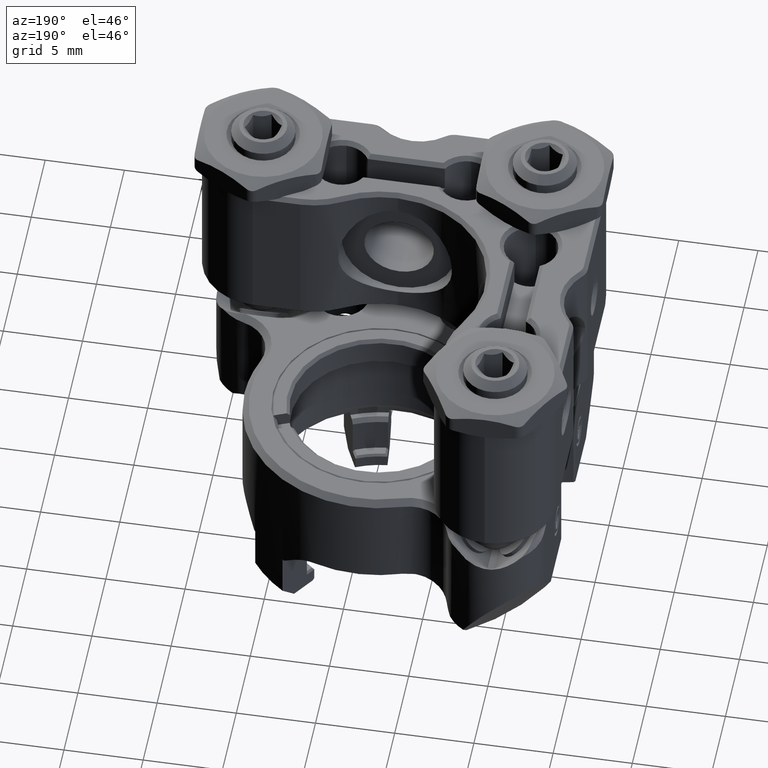
[diagram: clean part render]
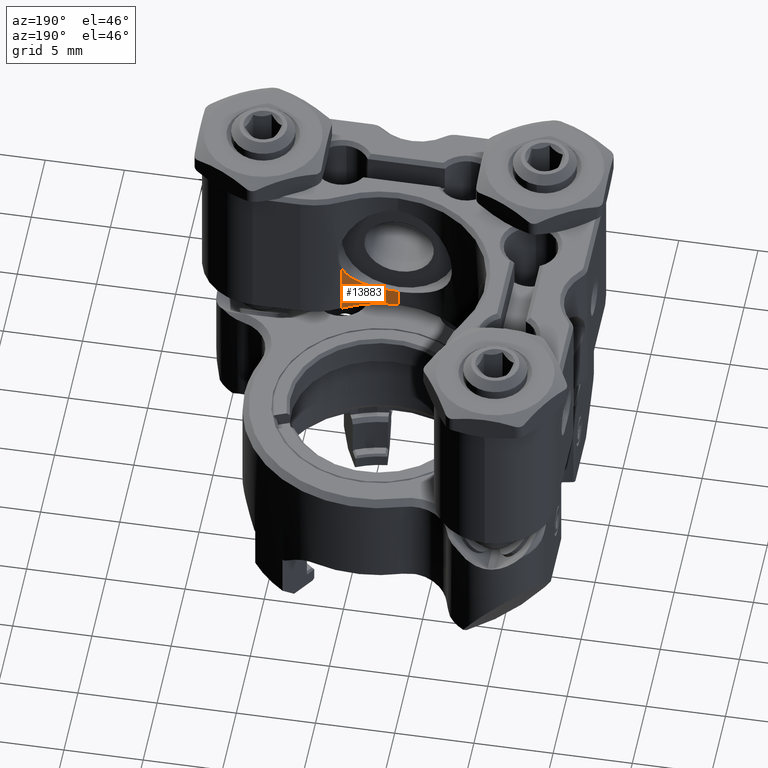
[diagram: same view with one face highlighted and labeled with its STEP entity id]
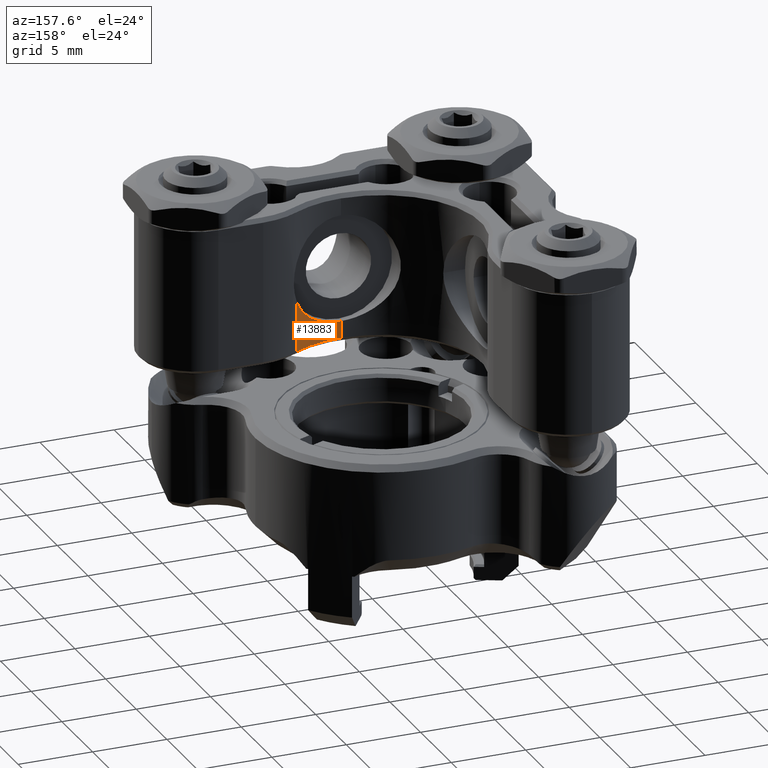
[diagram: same view with one face highlighted and labeled with its STEP entity id]
A machine part, auxiliary view. The second image highlights one B-rep face of the part: STEP entity #13883.
A second angle (auxiliary view) of the same face is appended — the face is thin or edge-on in the first view.
In plain terms, the highlighted cylindrical surface (partial cylindrical patch) has radius 6.67 mm, axis along (-0, 0, 1).
Its self-contained STEP definition (entity closure, byte-faithful):
#92 = CARTESIAN_POINT ( 'NONE',  ( -3.147005107589001316, 1.757628741144395157, -6.436434304216347435 ) ) ;
#231 = FACE_OUTER_BOUND ( 'NONE', #2320, .T. ) ;
#506 = B_SPLINE_CURVE_WITH_KNOTS ( 'NONE', 3,
 ( #7417, #8712, #7501, #8867, #11045, #10015, #6276, #92, #5077, #14966, #1146, #3843, #7665, #7578, #12512, #1394 ),
 .UNSPECIFIED., .F., .F.,
 ( 4, 2, 2, 2, 2, 2, 2, 4 ),
 ( 0.01589712394646228266, 0.01644874977409285788, 0.01700037560172343309, 0.01755200142935400831, 0.01810362725698458006, 0.01865525308461515527, 0.01920687891224573396, 0.02031013056750688439 ),
 .UNSPECIFIED. ) ;
#531 = VERTEX_POINT ( 'NONE', #10939 ) ;
#541 = CARTESIAN_POINT ( 'NONE',  ( -5.000000000000000000, 3.361113441611756514, -5.761233933161954646 ) ) ;
#1146 = CARTESIAN_POINT ( 'NONE',  ( -2.736799849841528243, 2.345568305466829262, -6.245529172341972135 ) ) ;
#1394 = CARTESIAN_POINT ( 'NONE',  ( -1.289541171353894011, 3.361113441611756514, -5.761233933161954646 ) ) ;
#2116 = ORIENTED_EDGE ( 'NONE', *, *, #15062, .T. ) ;
#2320 = EDGE_LOOP ( 'NONE', ( #2116, #3225, #6565, #9005 ) ) ;
#3116 = CARTESIAN_POINT ( 'NONE',  ( -4.749999999999996447, -3.469446951953614189E-15, -1.734723475976807094E-15 ) ) ;
#3225 = ORIENTED_EDGE ( 'NONE', *, *, #10791, .T. ) ;
#3843 = CARTESIAN_POINT ( 'NONE',  ( -2.491741413215389667, 2.604417175371586346, -6.142095448201257746 ) ) ;
#4221 = DIRECTION ( 'NONE',  ( 1.000000000000000000, -0.000000000000000000, -0.000000000000000000 ) ) ;
#4959 = CYLINDRICAL_SURFACE ( 'NONE', #9801, 6.669999999999999929 ) ;
#5077 = CARTESIAN_POINT ( 'NONE',  ( -3.054001304067242017, 1.914436511209506087, -6.391213345819184433 ) ) ;
#5366 = VERTEX_POINT ( 'NONE', #6500 ) ;
#5889 = AXIS2_PLACEMENT_3D ( 'NONE', #3116, #11698, #7913 ) ;
#6276 = CARTESIAN_POINT ( 'NONE',  ( -3.307732979805997342, 1.432411418968668748, -6.516528437058951795 ) ) ;
#6500 = CARTESIAN_POINT ( 'NONE',  ( -4.749999999999996447, -3.469446951953614189E-15, -6.670000000000001705 ) ) ;
#6565 = ORIENTED_EDGE ( 'NONE', *, *, #8869, .T. ) ;
#7242 = CARTESIAN_POINT ( 'NONE',  ( -3.600000000000000089, -3.469446937245302611E-15, -6.670000000000001705 ) ) ;
#7417 = CARTESIAN_POINT ( 'NONE',  ( -3.600000000000000089, -3.469446937245302611E-15, -6.670000000000001705 ) ) ;
#7501 = CARTESIAN_POINT ( 'NONE',  ( -3.585862184799641472, 0.3683835554340850749, -6.662337244074456599 ) ) ;
#7578 = CARTESIAN_POINT ( 'NONE',  ( -1.939384064419855891, 3.053627493809750071, -5.934863450073942559 ) ) ;
#7587 = VECTOR ( 'NONE', #11827, 1000.000000000000000 ) ;
#7665 = CARTESIAN_POINT ( 'NONE',  ( -2.358436645133179521, 2.725663120409797635, -6.088862522222973084 ) ) ;
#7913 = DIRECTION ( 'NONE',  ( 0.000000000000000000, -4.440892098500625373E-15, -1.000000000000000000 ) ) ;
#8712 = CARTESIAN_POINT ( 'NONE',  ( -3.600000000000001421, 0.1847499506856960239, -6.670000000000001705 ) ) ;
#8867 = CARTESIAN_POINT ( 'NONE',  ( -3.529332936726555126, 0.7334323922676231344, -6.632082698795943365 ) ) ;
#8869 = EDGE_CURVE ( 'NONE', #13071, #531, #506, .T. ) ;
#9005 = ORIENTED_EDGE ( 'NONE', *, *, #15468, .T. ) ;
#9037 = CARTESIAN_POINT ( 'NONE',  ( -4.749999999999996447, 3.361113441611756514, -5.761233933161954646 ) ) ;
#9253 = LINE ( 'NONE', #12917, #9991 ) ;
#9743 = CIRCLE ( 'NONE', #5889, 6.669999999999999929 ) ;
#9801 = AXIS2_PLACEMENT_3D ( 'NONE', #13964, #10220, #11262 ) ;
#9991 = VECTOR ( 'NONE', #4221, 1000.000000000000000 ) ;
#10015 = CARTESIAN_POINT ( 'NONE',  ( -3.375722019571915755, 1.264100335069076930, -6.551501146573277978 ) ) ;
#10220 = DIRECTION ( 'NONE',  ( 1.000000000000000000, -0.000000000000000000, -0.000000000000000000 ) ) ;
#10379 = VERTEX_POINT ( 'NONE', #9037 ) ;
#10791 = EDGE_CURVE ( 'NONE', #5366, #13071, #9253, .T. ) ;
#10939 = CARTESIAN_POINT ( 'NONE',  ( -1.289541171353894011, 3.361113441611756514, -5.761233933161954646 ) ) ;
#11045 = CARTESIAN_POINT ( 'NONE',  ( -3.486450982811517996, 0.9154825803897338465, -6.609236610659031008 ) ) ;
#11262 = DIRECTION ( 'NONE',  ( 0.000000000000000000, 0.000000000000000000, -1.000000000000000000 ) ) ;
#11698 = DIRECTION ( 'NONE',  ( -1.000000000000000000, -0.000000000000000000, -0.000000000000000000 ) ) ;
#11827 = DIRECTION ( 'NONE',  ( -1.000000000000000000, 0.000000000000000000, 0.000000000000000000 ) ) ;
#12512 = CARTESIAN_POINT ( 'NONE',  ( -1.631720516840246438, 3.229831245501176618, -5.837824184332228050 ) ) ;
#12917 = CARTESIAN_POINT ( 'NONE',  ( -5.000000000000000000, -3.469446951953614189E-15, -6.670000000000001705 ) ) ;
#13071 = VERTEX_POINT ( 'NONE', #7242 ) ;
#13883 = ADVANCED_FACE ( 'NONE', ( #231 ), #4959, .F. ) ;
#13964 = CARTESIAN_POINT ( 'NONE',  ( -5.000000000000000000, -3.469446951953614189E-15, -1.734723475976807094E-15 ) ) ;
#14346 = LINE ( 'NONE', #541, #7587 ) ;
#14966 = CARTESIAN_POINT ( 'NONE',  ( -2.849197716455502682, 2.207728129376713255, -6.295920242028809177 ) ) ;
#15062 = EDGE_CURVE ( 'NONE', #10379, #5366, #9743, .T. ) ;
#15468 = EDGE_CURVE ( 'NONE', #531, #10379, #14346, .T. ) ;